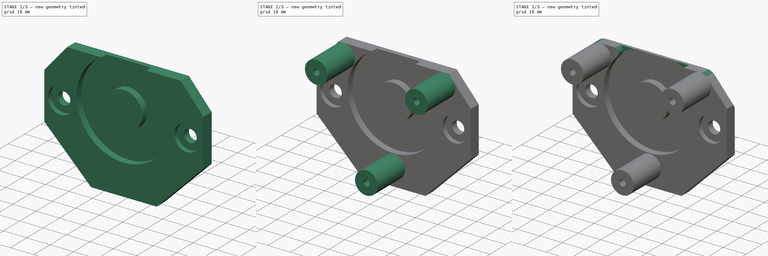
[diagram: build sequence overview — one tinted view per stage of 3, left to right]
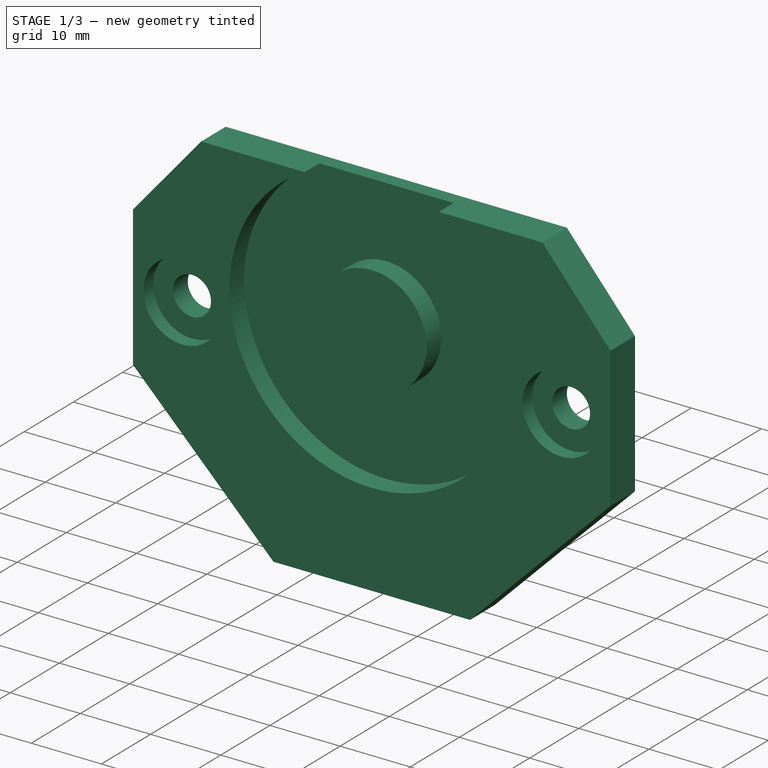
[diagram: stage 1 of 3 — iso view after this stage's code; geometry added in this stage tinted green]
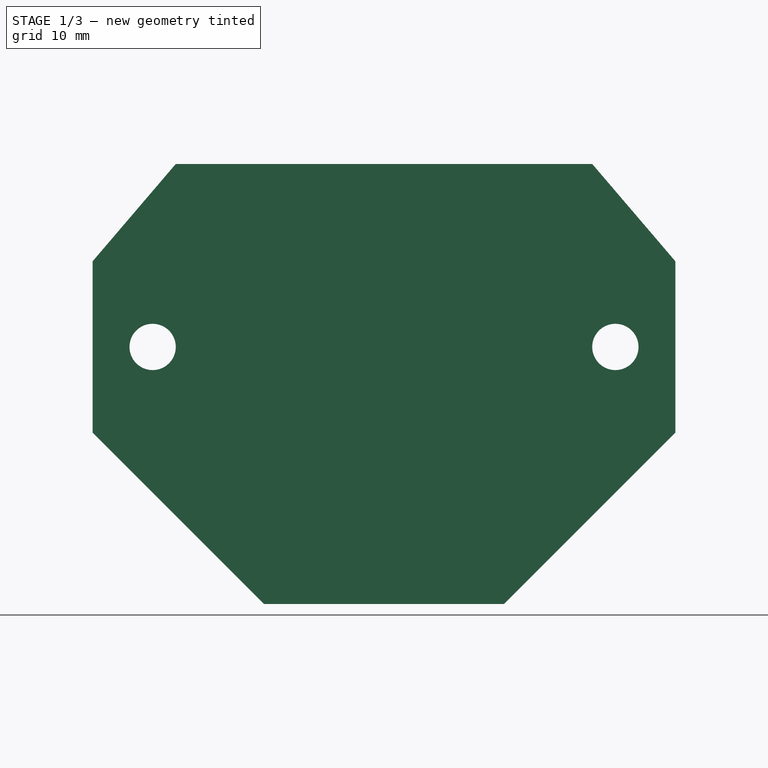
[diagram: stage 1 of 3 — front view after this stage's code; geometry added in this stage tinted green]
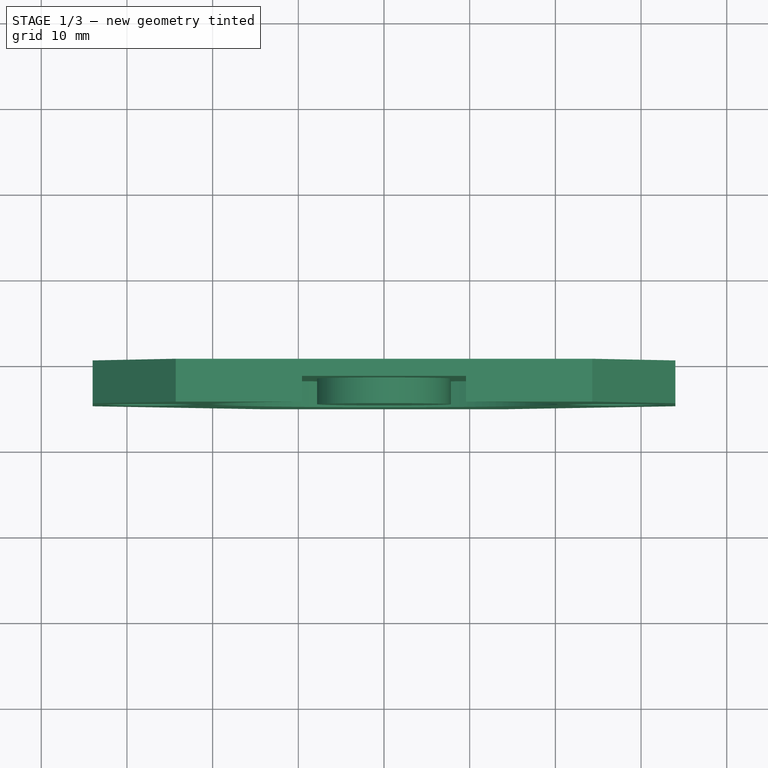
[diagram: stage 1 of 3 — top view after this stage's code; geometry added in this stage tinted green]
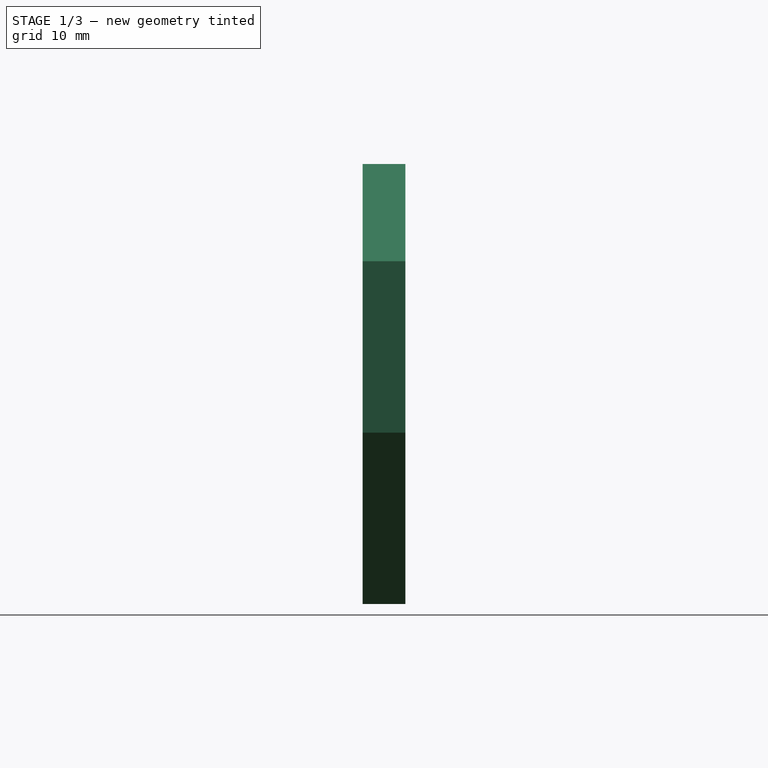
[diagram: stage 1 of 3 — right view after this stage's code; geometry added in this stage tinted green]
FCSTD DOCUMENT  (FreeCAD 0.18R4 (GitTag))
Label: _Y_Tensioner_Frame
License: CreativeCommons Attribution
LicenseURL: http://creativecommons.org/licenses/by/4.0/
objects: Sketcher::SketchObject×5, PartDesign::Pad×2, PartDesign::Pocket×2, PartDesign::Fillet×2, PartDesign::Hole×1, PartDesign::Chamfer×1, PartDesign::Body×1
note: 19 computed .brp shape members not serialized (recipe doc carries the construction recipe); baked Part::Feature solids carry a one-line shape summary decoded from their .brp

FEATURE [Sketcher::SketchObject] Sketch
  MapMode = 5
  Placement = pos=(0,0,0) rot=(1,0,0;1.5708rad)
  Support = -> [XZ_Plane]
  sketch-geometry (14):
    g0: LineSegment StartX=-24.3027 StartY=17.85 StartZ=0 EndX=24.3027 EndY=17.85 EndZ=0
    g1: LineSegment StartX=34 StartY=6.5 StartZ=0 EndX=34 EndY=-13.5 EndZ=0
    g2: LineSegment StartX=14 StartY=-33.5 StartZ=0 EndX=-14 EndY=-33.5 EndZ=0
    g3: LineSegment StartX=-34 StartY=-13.5 StartZ=0 EndX=-34 EndY=6.5 EndZ=0
    g4: LineSegment [constr] StartX=-27 StartY=-3.5 StartZ=0 EndX=27 EndY=-3.5 EndZ=0
    g5: Circle CenterX=-27 CenterY=-3.5 CenterZ=0 NormalX=0 NormalY=0 NormalZ=1 AngleXU=0 Radius=2.7
    g6: Circle CenterX=27 CenterY=-3.5 CenterZ=0 NormalX=0 NormalY=0 NormalZ=1 AngleXU=0 Radius=2.7
    g7: LineSegment StartX=-24.3027 StartY=17.85 StartZ=0 EndX=-34 EndY=6.5 EndZ=0
    g8: LineSegment StartX=24.3027 StartY=17.85 StartZ=0 EndX=34 EndY=6.5 EndZ=0
    g9: LineSegment StartX=-34 StartY=-13.5 StartZ=0 EndX=-14 EndY=-33.5 EndZ=0
    g10: LineSegment StartX=34 StartY=-13.5 StartZ=0 EndX=14 EndY=-33.5 EndZ=0
    g11: Circle [constr] CenterX=0 CenterY=0 CenterZ=0 NormalX=0 NormalY=0 NormalZ=1 AngleXU=0 Radius=25.5
    g12: Circle [constr] CenterX=-22.0836 CenterY=12.75 CenterZ=0 NormalX=0 NormalY=0 NormalZ=1 AngleXU=0 Radius=5
    g13: LineSegment [constr] StartX=-22.0836 StartY=12.75 StartZ=0 EndX=0 EndY=0 EndZ=0
  constraints (33):
    c: Coincident(g5,g4)
    c: Coincident(g6,g4)
    c: Equal(g6,g5)
    c: Symmetric(g5,g6,g-2)
    c: Diameter(g5) = 5.4
    c: DistanceX(g4,g4) = 54
    c: Coincident(g0,g7)
    c: Coincident(g7,g3)
    c: Coincident(g0,g8)
    c: Coincident(g8,g1)
    c: Symmetric(g0,g0,g-2)
    c: Symmetric(g3,g1,g-2)
    c: DistanceX(g3,g1) = 68
    c: Coincident(g2,g9)
    c: Coincident(g2,g10)
    c: DistanceY(g2,g-1) = 33.5
    c: DistanceY(g2,g0) = 51.35
    c: Coincident(g3,g9)
    c: Symmetric(g2,g2,g-2)
    c: Symmetric(g3,g1,g-2)
    c: DistanceY(g2,g5) = 30
    c: Symmetric(g3,g3,g4)
    c: Coincident(g10,g1)
    c: DistanceY(g1,g1) = 20
    c: Coincident(g11,g-1)
    c: Diameter(g11) = 51
    c: PointOnObject(g12,g11)
    c: Diameter(g12) = 10
    c: Coincident(g13,g12)
    c: Coincident(g13,g-1)
    c: Angle(g-1,g13) = 2.61799
    c: Tangent(g12,g7)
    c: Perpendicular(g9,g10)
FEATURE [PartDesign::Pad] Pad
  Length = 5
  Length2 = 100
  Placement = pos=(0,0,0) rot=(1,0,0;1.5708rad)
  Profile = -> Sketch
  Type = 0
FEATURE [Sketcher::SketchObject] Sketch001
  AttachmentOffset = pos=(0,0,5) rot=(0,0,1;0rad)
  ExternalGeometry = -> [Sketch]
  MapMode = 5
  Placement = pos=(0,-5,-1.1e-15) rot=(1,0,0;1.5708rad)
  Support = -> [XZ_Plane]
  expr: AttachmentOffset.Base.z = Pad.Length
  sketch-geometry (3):
    g0: Circle CenterX=0 CenterY=0 CenterZ=0 NormalX=0 NormalY=0 NormalZ=1 AngleXU=0 Radius=7.8
    g1: ArcOfCircle CenterX=0 CenterY=0 CenterZ=0 NormalX=0 NormalY=0 NormalZ=1 AngleXU=0 Radius=20.25 StartAngle=2.0626 EndAngle=7.36218
    g2: LineSegment StartX=-9.56243 StartY=17.85 StartZ=0 EndX=9.56243 EndY=17.85 EndZ=0
  constraints (8):
    c: Diameter(g0) = 15.6
    c: Diameter(g1) = 40.5
    c: Coincident(g0,g1)
    c: Coincident(g0,g-1)
    c: Coincident(g2,g1)
    c: Coincident(g2,g1)
    c: PointOnObject(g1,g-3)
    c: PointOnObject(g1,g-3)
FEATURE [PartDesign::Pocket] Pocket
  BaseFeature = -> Pad
  Length = 3
  Length2 = 100
  Placement = pos=(0,0,0) rot=(1,0,0;1.5708rad)
  Profile = -> Sketch001
  Type = 0
FEATURE [Sketcher::SketchObject] Sketch002
  AttachmentOffset = pos=(0,0,5) rot=(0,0,1;0rad)
  MapMode = 5
  Placement = pos=(0,-5,-1.1e-15) rot=(1,0,0;1.5708rad)
  Support = -> [XZ_Plane]
  expr: AttachmentOffset.Base.z = Pad.Length
  sketch-geometry (6):
    g0: Circle [constr] CenterX=0 CenterY=0 CenterZ=0 NormalX=0 NormalY=0 NormalZ=1 AngleXU=0 Radius=25.5
    g1: LineSegment [constr] StartX=0 StartY=0 StartZ=0 EndX=-22.0836 EndY=12.75 EndZ=0
    g2: LineSegment [constr] StartX=0 StartY=0 StartZ=0 EndX=22.0836 EndY=12.75 EndZ=0
    g3: Circle CenterX=0 CenterY=-25.5 CenterZ=0 NormalX=0 NormalY=0 NormalZ=1 AngleXU=0 Radius=5
    g4: Circle CenterX=-22.0836 CenterY=12.75 CenterZ=0 NormalX=0 NormalY=0 NormalZ=1 AngleXU=0 Radius=5
    g5: Circle CenterX=22.0836 CenterY=12.75 CenterZ=0 NormalX=0 NormalY=0 NormalZ=1 AngleXU=0 Radius=5
  constraints (15):
    c: Coincident(g0,g-1)
    c: Diameter(g0) = 51
    c: Coincident(g1,g-1)
    c: Coincident(g2,g-1)
    c: PointOnObject(g2,g0)
    c: PointOnObject(g1,g0)
    c: Angle(g2,g1) = 2.0944
    c: Angle(g-1,g2) = 0.523599
    c: PointOnObject(g3,g-2)
    c: Coincident(g4,g1)
    c: Coincident(g5,g2)
    c: Equal(g3,g4)
    c: Equal(g4,g5)
    c: Diameter(g3) = 10
    c: PointOnObject(g3,g0)
FEATURE [Sketcher::SketchObject] Sketch003
  AttachmentOffset = pos=(0,0,22.2) rot=(0,0,1;0rad)
  ExternalGeometry = -> [Sketch002]
  MapMode = 5
  Placement = pos=(0,-22.2,-4.9e-15) rot=(1,0,0;1.5708rad)
  Support = -> [XZ_Plane]
  expr: AttachmentOffset.Base.z = Pad.Length + Pad001.Length
  sketch-geometry (3):
    g0: Circle CenterX=-22.0836 CenterY=12.75 CenterZ=0 NormalX=0 NormalY=0 NormalZ=1 AngleXU=0 Radius=1.4
    g1: Circle CenterX=22.0836 CenterY=12.75 CenterZ=0 NormalX=0 NormalY=0 NormalZ=1 AngleXU=0 Radius=1.4
    g2: Circle CenterX=0 CenterY=-25.5 CenterZ=0 NormalX=0 NormalY=0 NormalZ=1 AngleXU=0 Radius=1.4
  constraints (6):
    c: Coincident(g0,g-3)
    c: Coincident(g1,g-4)
    c: Coincident(g2,g-5)
    c: Equal(g2,g0)
    c: Equal(g0,g1)
    c: Diameter(g2) = 2.8
FEATURE [Sketcher::SketchObject] Sketch004
  AttachmentOffset = pos=(0,0,5) rot=(0,0,1;0rad)
  ExternalGeometry = -> [Sketch]
  MapMode = 5
  Placement = pos=(0,-5,-1.1e-15) rot=(1,0,0;1.5708rad)
  Support = -> [XZ_Plane]
  expr: AttachmentOffset.Base.z = Pad.Length
  sketch-geometry (2):
    g0: Circle CenterX=-27 CenterY=-3.5 CenterZ=0 NormalX=0 NormalY=0 NormalZ=1 AngleXU=0 Radius=5.5
    g1: Circle CenterX=27 CenterY=-3.5 CenterZ=0 NormalX=0 NormalY=0 NormalZ=1 AngleXU=0 Radius=5.5
  constraints (4):
    c: Coincident(g0,g-3)
    c: Coincident(g1,g-4)
    c: Diameter(g0) = 11
    c: Equal(g0,g1)
FEATURE [PartDesign::Pocket] Pocket001
  BaseFeature = -> Pocket
  Length = 2
  Length2 = 100
  Placement = pos=(0,0,0) rot=(1,0,0;1.5708rad)
  Profile = -> Sketch004
  Type = 0
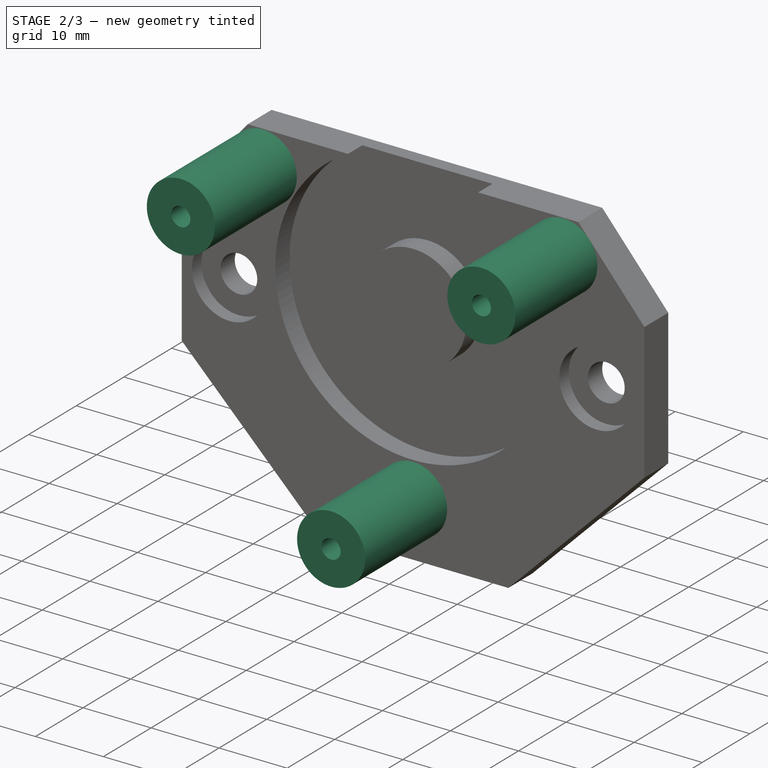
[diagram: stage 2 of 3 — iso view after this stage's code; geometry added in this stage tinted green]
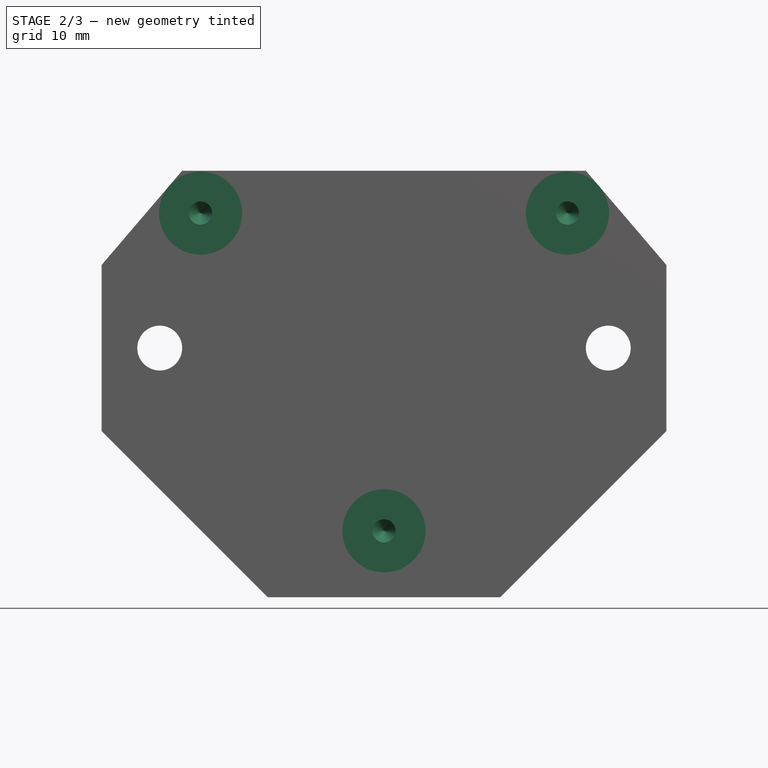
[diagram: stage 2 of 3 — front view after this stage's code; geometry added in this stage tinted green]
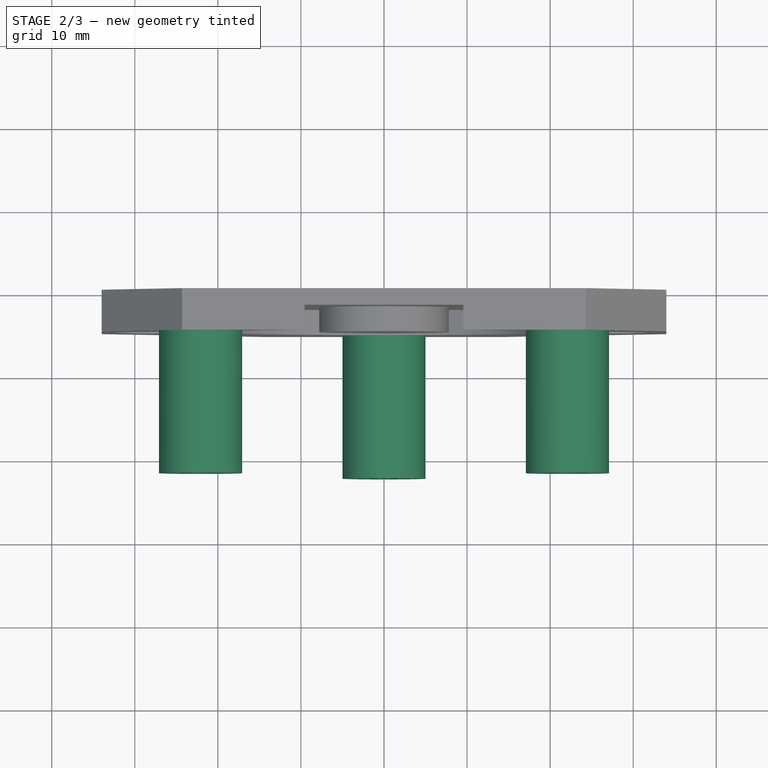
[diagram: stage 2 of 3 — top view after this stage's code; geometry added in this stage tinted green]
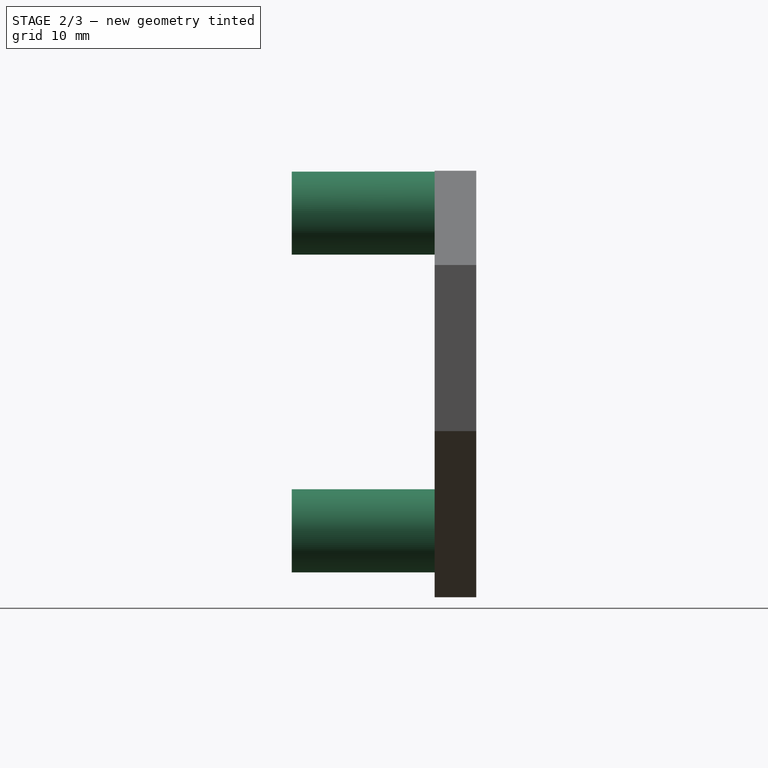
[diagram: stage 2 of 3 — right view after this stage's code; geometry added in this stage tinted green]
FEATURE [PartDesign::Pad] Pad001
  BaseFeature = -> Pocket001
  Length = 17.2
  Length2 = 100
  Placement = pos=(0,0,0) rot=(1,0,0;1.5708rad)
  Profile = -> Sketch002
  Type = 0
FEATURE [PartDesign::Hole] Hole
  BaseFeature = -> Pad001
  Depth = 11
  DepthType = 0
  Diameter = 2.8
  DrillPoint = 1
  DrillPointAngle = 90
  HoleCutCountersinkAngle = 90
  HoleCutDepth = 0
  HoleCutDiameter = 0
  HoleCutType = 0
  ModelActualThread = false
  Placement = pos=(0,0,0) rot=(1,0,0;1.5708rad)
  Profile = -> Sketch003
  Tapered = false
  TaperedAngle = 90
  ThreadAngle = 0
  ThreadClass = 0
  ThreadCutOffInner = 0
  ThreadCutOffOuter = 0
  ThreadDirection = 0
  ThreadFit = 0
  ThreadPitch = 0
  ThreadSize = 0
  ThreadType = 0
  Threaded = false
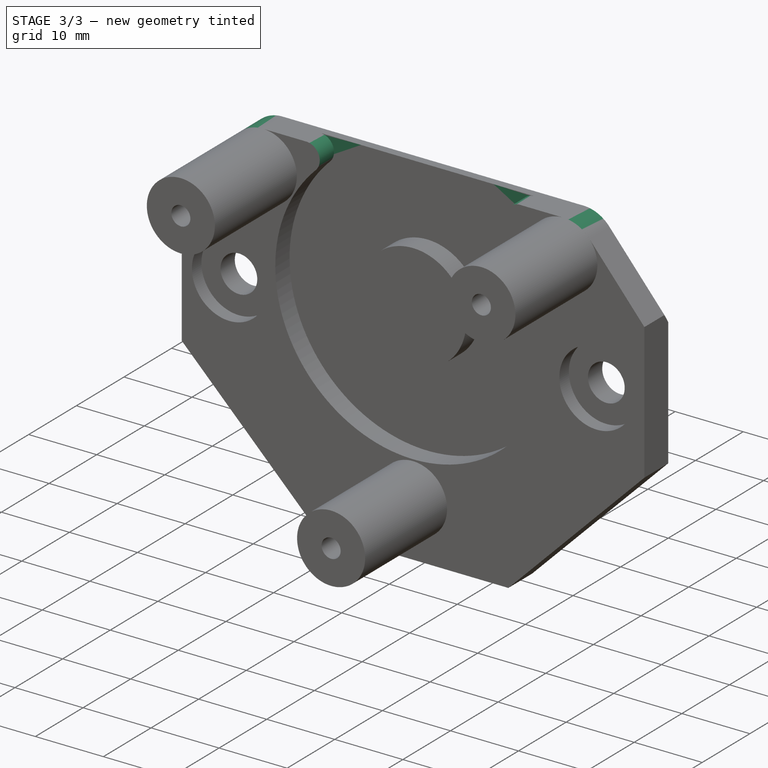
[diagram: stage 3 of 3 — iso view after this stage's code; geometry added in this stage tinted green]
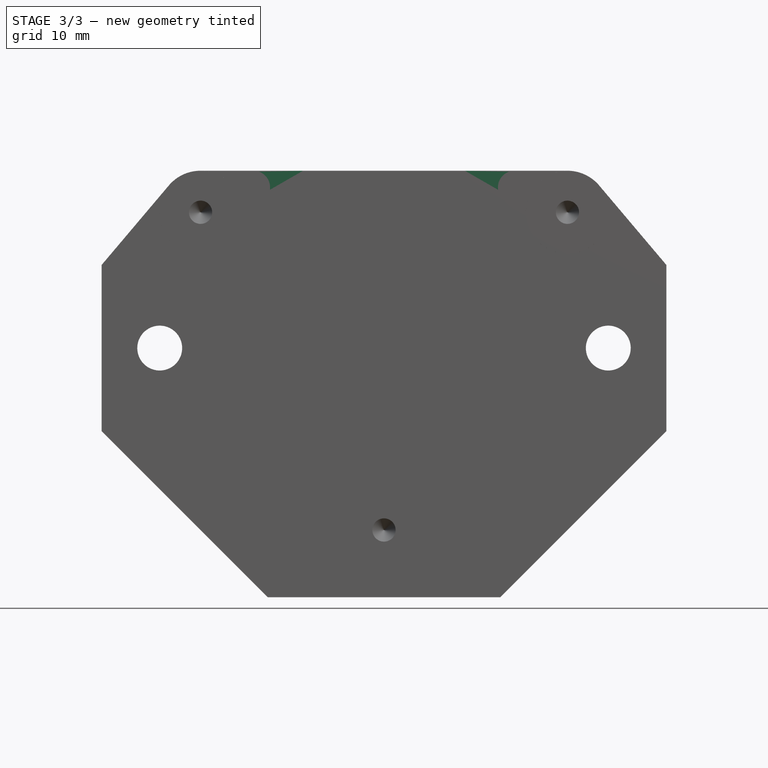
[diagram: stage 3 of 3 — front view after this stage's code; geometry added in this stage tinted green]
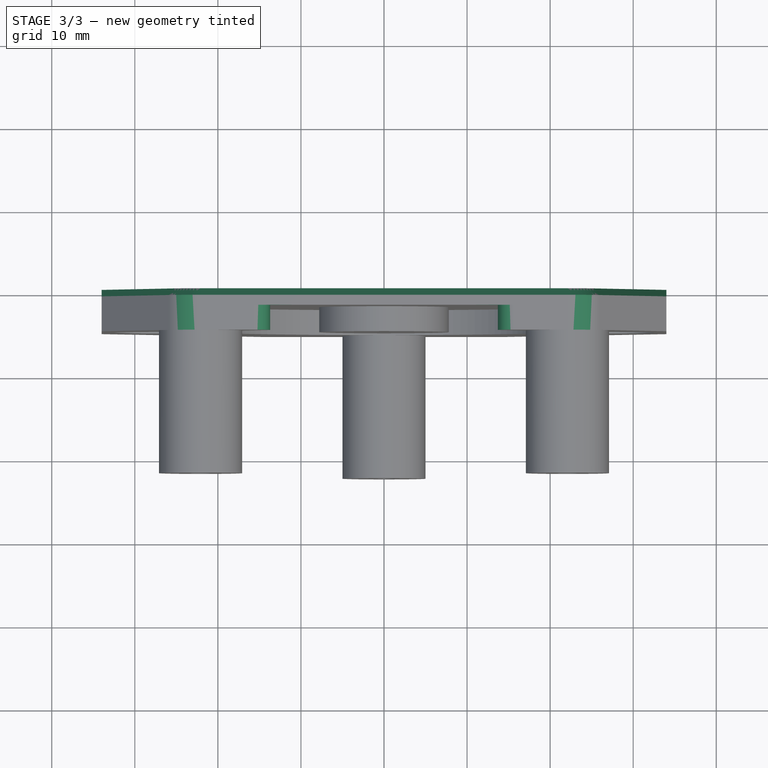
[diagram: stage 3 of 3 — top view after this stage's code; geometry added in this stage tinted green]
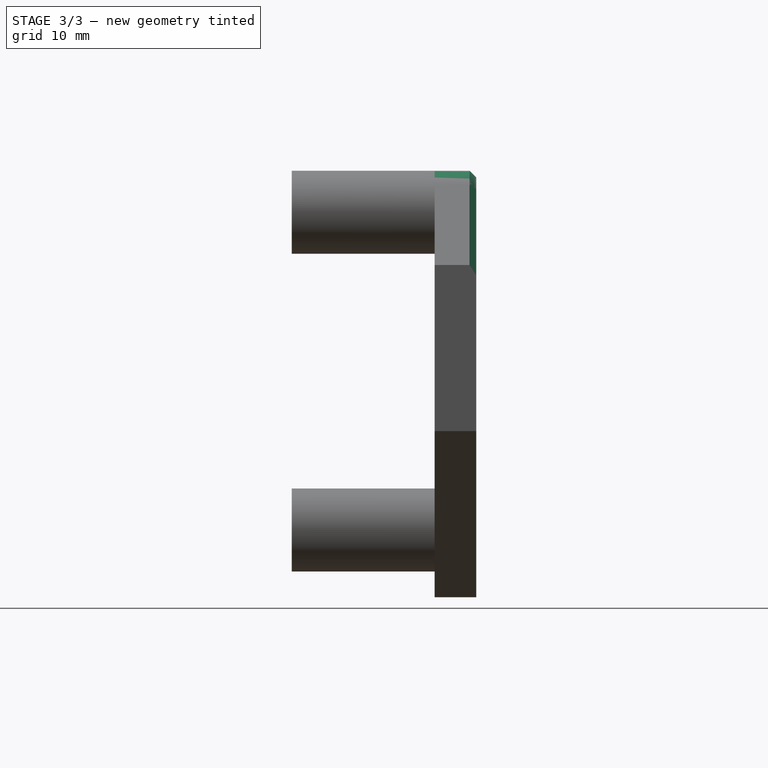
[diagram: stage 3 of 3 — right view after this stage's code; geometry added in this stage tinted green]
FEATURE [PartDesign::Fillet] Fillet
  Base = -> Hole [Edge8,Edge34]
  BaseFeature = -> Hole
  Placement = pos=(0,0,0) rot=(1,0,0;1.5708rad)
  Radius = 4.98
FEATURE [PartDesign::Fillet] Fillet001
  Base = -> Fillet [Edge40,Edge41]
  BaseFeature = -> Fillet
  Placement = pos=(0,0,0) rot=(1,0,0;1.5708rad)
  Radius = 2
FEATURE [PartDesign::Chamfer] Chamfer
  Base = -> Fillet001 [Edge38,Edge67,Edge25,Edge66,Edge51]
  BaseFeature = -> Fillet001
  Placement = pos=(0,0,0) rot=(1,0,0;1.5708rad)
  Size = 0.8
FEATURE [PartDesign::Body] Body  label="Y-Tensioner_Frame"
  Group = -> [Sketch,Pad,Sketch001,Pocket,Sketch002,Sketch004,Pocket001,Pad001,Sketch003,Hole,Fillet,Fillet001,Chamfer]
  Origin = -> Origin
  Tip = -> Chamfer
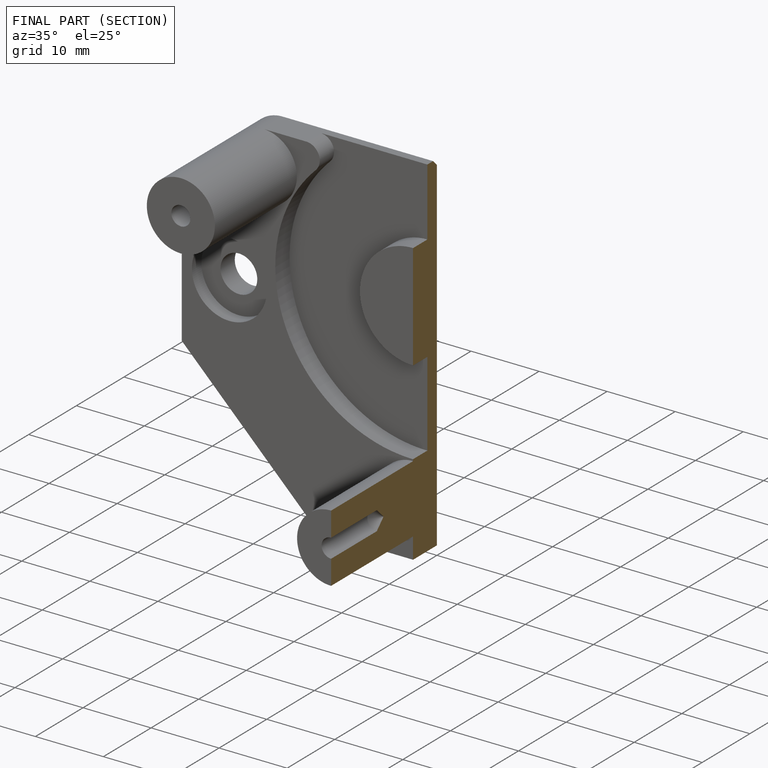
[diagram: finished part — half-section view (interior)]
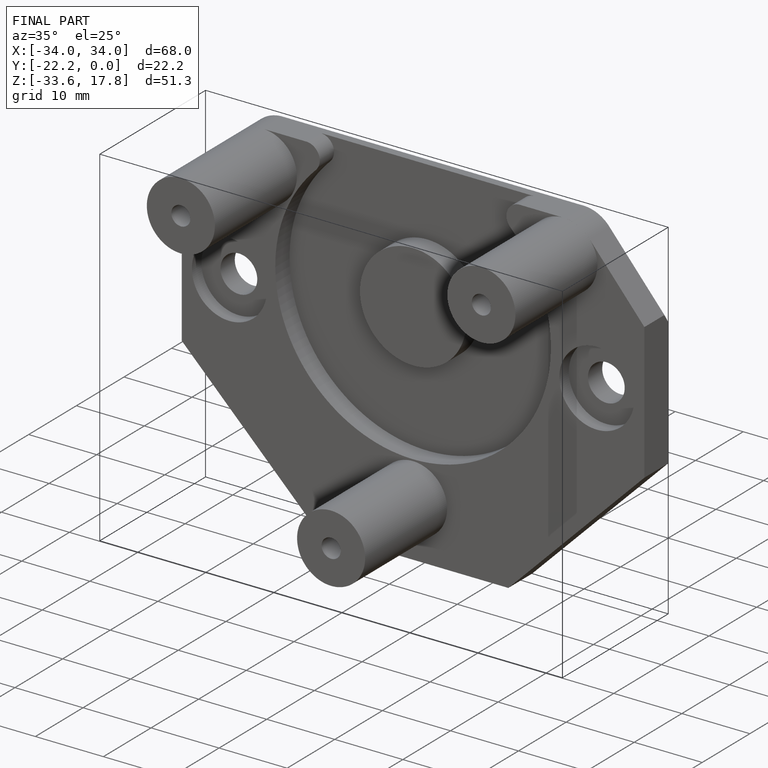
[diagram: finished part — iso view with bounding-box wireframe]
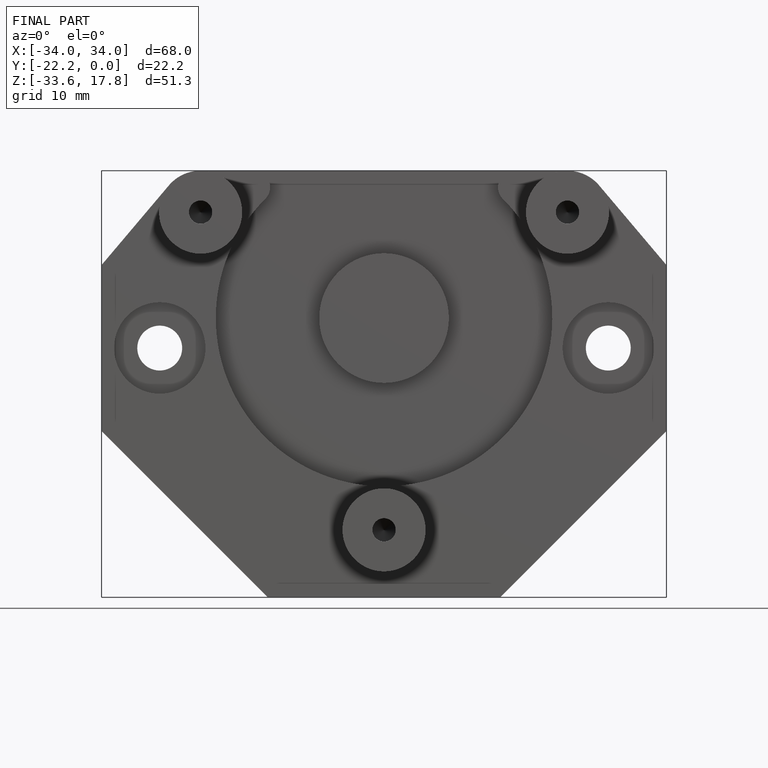
[diagram: finished part — front view with bounding-box wireframe]
